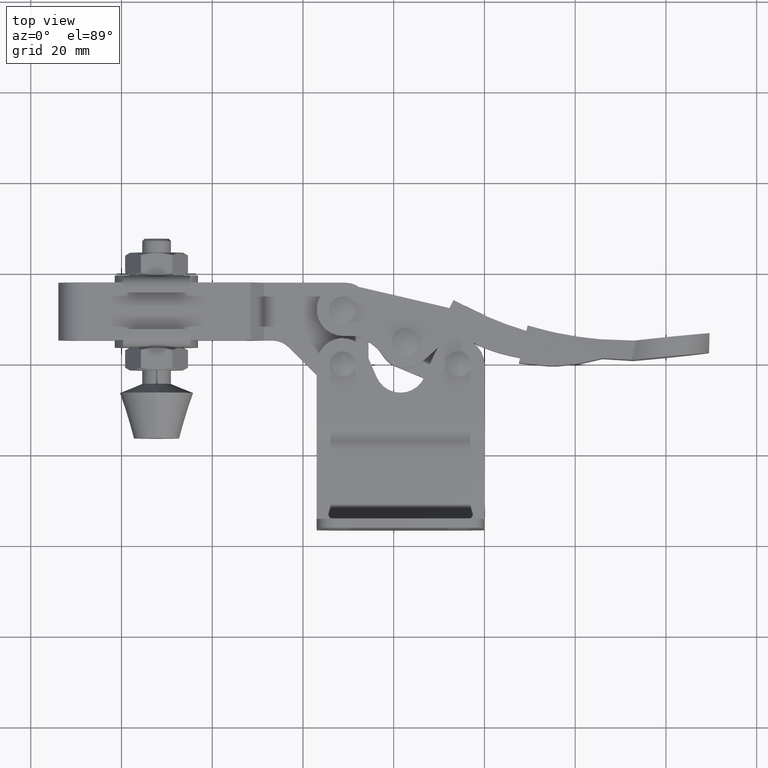
[diagram: clean part render]
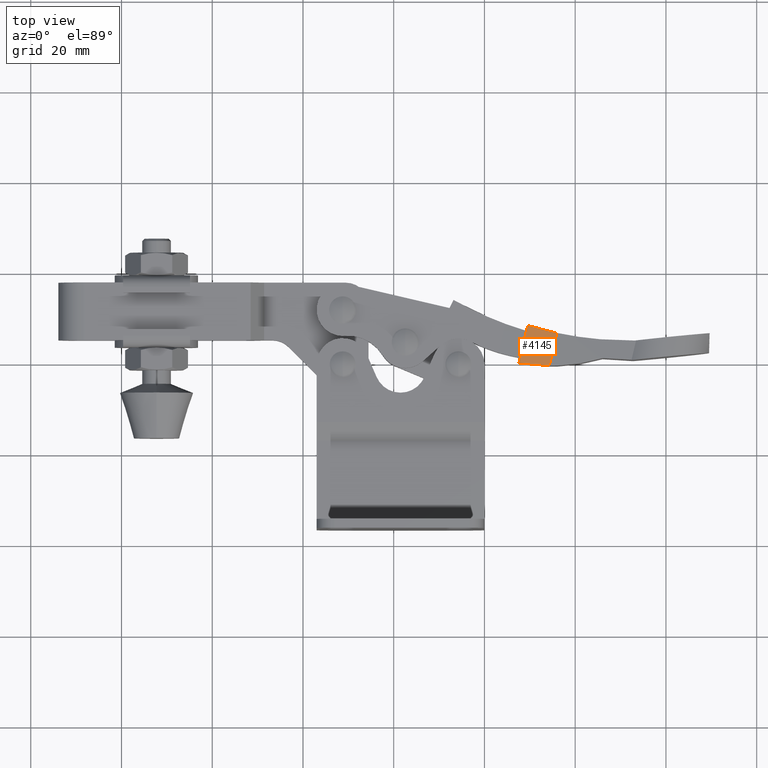
[diagram: same view with one face highlighted and labeled with its STEP entity id]
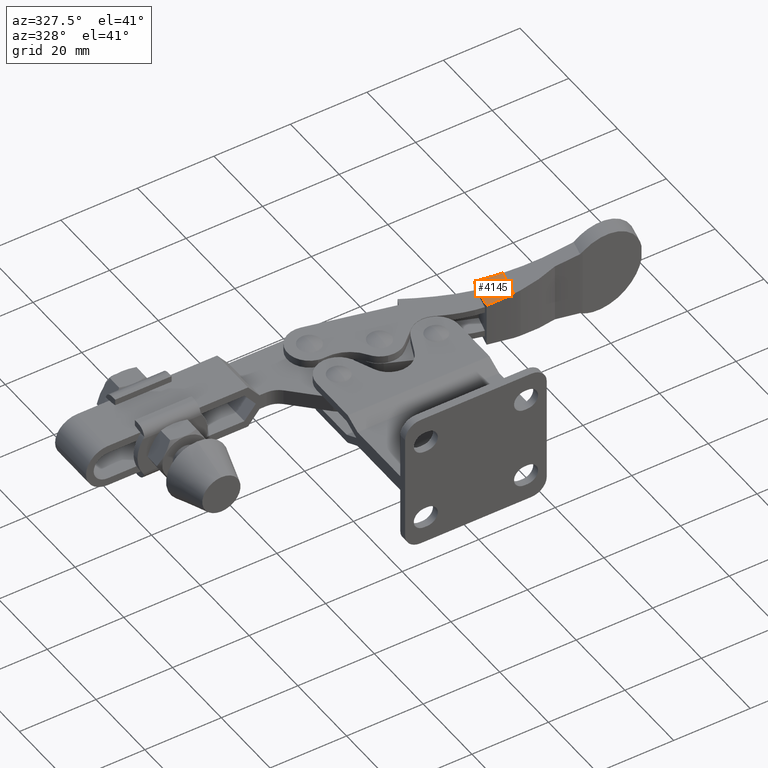
[diagram: same view with one face highlighted and labeled with its STEP entity id]
A machine part, top view. The second image highlights one B-rep face of the part: STEP entity #4145.
A second angle (auxiliary view) of the same face is appended — the face is thin or edge-on in the first view.
In plain terms, the highlighted cylindrical surface (partial cylindrical patch) has radius 78.5 mm, axis along (0.2273, 0.9738, -0).
Its self-contained STEP definition (entity closure, byte-faithful):
#58 = B_SPLINE_CURVE_WITH_KNOTS ( 'NONE', 3,
 ( #7921, #1261, #8499, #754 ),
 .UNSPECIFIED., .F., .F.,
 ( 4, 4 ),
 ( 1.480243719774802400E-017, 0.006763215638367357600 ),
 .UNSPECIFIED. ) ;
#72 = CARTESIAN_POINT ( 'NONE',  ( 14.42767041798735200, 26.97503397521976300, 4.230005818732852400 ) ) ;
#239 = CARTESIAN_POINT ( 'NONE',  ( 9.515652026849007700, 28.29010702005013300, 3.749538697489254200 ) ) ;
#551 = DIRECTION ( 'NONE',  ( 0.2273152359232463700, 0.9738212276989852700, -5.621189200537000000E-022 ) ) ;
#754 = CARTESIAN_POINT ( 'NONE',  ( 14.28702906679042100, 19.41482591856081500, 4.447964301841707000 ) ) ;
#798 = EDGE_CURVE ( 'NONE', #2887, #3060, #7652, .T. ) ;
#1143 = EDGE_CURVE ( 'NONE', #1661, #2745, #3357, .T. ) ;
#1261 = CARTESIAN_POINT ( 'NONE',  ( 9.814196516200045300, 19.64491545035572200, 3.888982890281324600 ) ) ;
#1450 = CARTESIAN_POINT ( 'NONE',  ( 12.78234832061613000, 27.35909500212653000, 4.014653009532477100 ) ) ;
#1558 = VERTEX_POINT ( 'NONE', #72 ) ;
#1661 = VERTEX_POINT ( 'NONE', #2335 ) ;
#1890 = EDGE_CURVE ( 'NONE', #2887, #1661, #58, .T. ) ;
#1922 = ORIENTED_EDGE ( 'NONE', *, *, #4433, .T. ) ;
#1927 = ORIENTED_EDGE ( 'NONE', *, *, #8506, .T. ) ;
#1960 = CYLINDRICAL_SURFACE ( 'NONE', #8963, 78.50000000000001400 ) ;
#2309 = VECTOR ( 'NONE', #9133, 1000.000000000000000 ) ;
#2335 = CARTESIAN_POINT ( 'NONE',  ( 14.28702906679042100, 19.41482591856081500, 4.447964301841707000 ) ) ;
#2745 = VERTEX_POINT ( 'NONE', #4115 ) ;
#2856 = DIRECTION ( 'NONE',  ( -0.9738212276989851600, 0.2273152359232463700, 0.0000000000000000000 ) ) ;
#2887 = VERTEX_POINT ( 'NONE', #3447 ) ;
#3060 = VERTEX_POINT ( 'NONE', #5721 ) ;
#3108 = FACE_OUTER_BOUND ( 'NONE', #3446, .T. ) ;
#3357 = LINE ( 'NONE', #6488, #2309 ) ;
#3446 = EDGE_LOOP ( 'NONE', ( #6993, #1922, #1927, #8572, #8566 ) ) ;
#3447 = CARTESIAN_POINT ( 'NONE',  ( 7.588572235215959700, 20.03447382001400000, 3.749538697489254200 ) ) ;
#3548 = CARTESIAN_POINT ( 'NONE',  ( 14.94150241976940000, 26.85509220419678700, 4.297260227591530100 ) ) ;
#4115 = CARTESIAN_POINT ( 'NONE',  ( 15.97146556828753300, 26.63097232074376200, 4.447964301841707000 ) ) ;
#4145 = ADVANCED_FACE ( 'NONE', ( #3108 ), #1960, .F. ) ;
#4433 = EDGE_CURVE ( 'NONE', #2745, #1558, #5842, .T. ) ;
#4715 = B_SPLINE_CURVE_WITH_KNOTS ( 'NONE', 3,
 ( #5025, #1450, #6953, #239 ),
 .UNSPECIFIED., .F., .F.,
 ( 4, 4 ),
 ( 0.001594953330921546300, 0.006702093311576505200 ),
 .UNSPECIFIED. ) ;
#5025 = CARTESIAN_POINT ( 'NONE',  ( 14.42767041798735200, 26.97503397521976300, 4.230005818732852400 ) ) ;
#5721 = CARTESIAN_POINT ( 'NONE',  ( 9.515652026849007700, 28.29010702005013300, 3.749538697489254200 ) ) ;
#5842 = B_SPLINE_CURVE_WITH_KNOTS ( 'NONE', 3,
 ( #5972, #9163, #3548, #6086 ),
 .UNSPECIFIED., .F., .F.,
 ( 4, 4 ),
 ( 0.0000000000000000000, 0.001594953330921546300 ),
 .UNSPECIFIED. ) ;
#5972 = CARTESIAN_POINT ( 'NONE',  ( 15.97146556828753300, 26.63097232074376200, 4.447964301841707000 ) ) ;
#6086 = CARTESIAN_POINT ( 'NONE',  ( 14.42767041798735200, 26.97503397521976300, 4.230005818732852400 ) ) ;
#6488 = CARTESIAN_POINT ( 'NONE',  ( 12.78924758210094100, 12.99831187223626800, 4.447964301841707000 ) ) ;
#6685 = CARTESIAN_POINT ( 'NONE',  ( 6.299746874797590700, 14.51313034440118000, 3.749538697489260800 ) ) ;
#6953 = CARTESIAN_POINT ( 'NONE',  ( 11.14490293060784700, 27.79705789842695300, 3.854538593043587800 ) ) ;
#6993 = ORIENTED_EDGE ( 'NONE', *, *, #1143, .T. ) ;
#7419 = VECTOR ( 'NONE', #9737, 1000.000000000000000 ) ;
#7652 = LINE ( 'NONE', #6685, #7419 ) ;
#7921 = CARTESIAN_POINT ( 'NONE',  ( 7.588572235215959700, 20.03447382001400000, 3.749538697489254200 ) ) ;
#8499 = CARTESIAN_POINT ( 'NONE',  ( 12.04694528802267000, 19.43993631463526800, 4.123857491433503800 ) ) ;
#8506 = EDGE_CURVE ( 'NONE', #1558, #3060, #4715, .T. ) ;
#8566 = ORIENTED_EDGE ( 'NONE', *, *, #1890, .T. ) ;
#8572 = ORIENTED_EDGE ( 'NONE', *, *, #798, .F. ) ;
#8963 = AXIS2_PLACEMENT_3D ( 'NONE', #9864, #551, #2856 ) ;
#9133 = DIRECTION ( 'NONE',  ( 0.2273152359232463700, 0.9738212276989852700, -5.621189200537000000E-022 ) ) ;
#9163 = CARTESIAN_POINT ( 'NONE',  ( 15.45610338444608300, 26.74041254303789500, 4.369907147800829800 ) ) ;
#9737 = DIRECTION ( 'NONE',  ( 0.2273152359232463700, 0.9738212276989852700, -5.621189200537000000E-022 ) ) ;
#9864 = CARTESIAN_POINT ( 'NONE',  ( 1.583473896623124800, 15.61403128414075200, 82.09999999999993700 ) ) ;